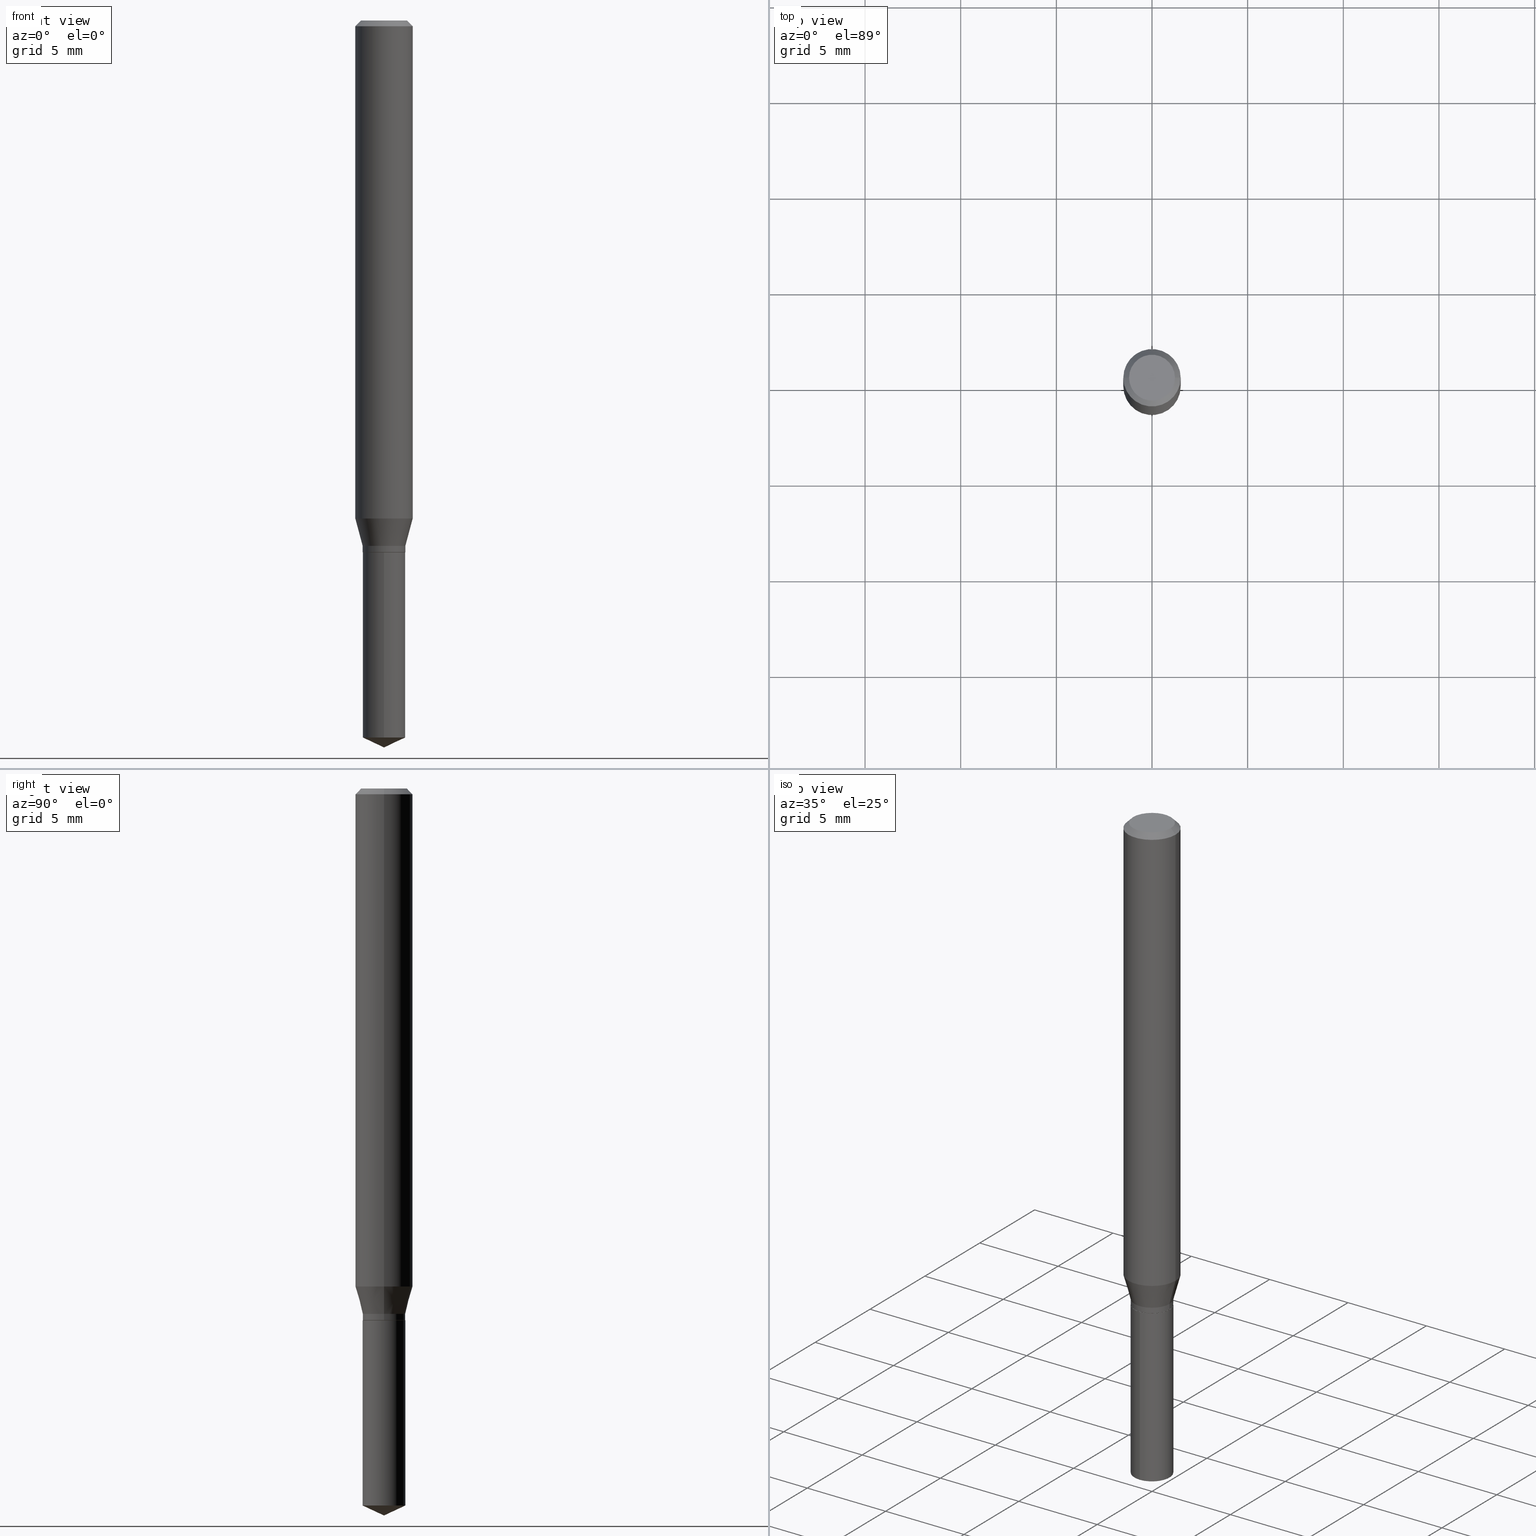
[diagram: canonical four-view strip — front | top / right | iso, engineering-drawing reading convention]
A machine part, canonical four-view strip (front | top / right | iso — engineering-drawing reading convention). The complete STEP part file that produces these views, byte-faithful:
ISO-10303-21;
HEADER;
FILE_DESCRIPTION (( 'STEP AP203' ),
    '1' );
FILE_NAME ('07972.STEP',
    '2024-04-24T07:39:22',
    ( '' ),
    ( '' ),
    'SwSTEP 2.0',
    'SolidWorks 2023',
    '' );
FILE_SCHEMA (( 'CONFIG_CONTROL_DESIGN' ));
ENDSEC;

DATA;
#1 = EDGE_LOOP ( 'NONE', ( #242, #339 ) ) ;
#2 = EDGE_CURVE ( 'NONE', #434, #27, #50, .T. ) ;
#3 = DIRECTION ( 'NONE',  ( -1.000000000000000000, 6.982962677686266711E-15, 0.000000000000000000 ) ) ;
#4 = VERTEX_POINT ( 'NONE', #436 ) ;
#5 = ADVANCED_FACE ( 'NONE', ( #198 ), #191, .T. ) ;
#6 = VECTOR ( 'NONE', #318, 39.37007874015748143 ) ;
#7 = DIRECTION ( 'NONE',  ( 1.000000000000000000, -6.982962677686265133E-15, 0.000000000000000000 ) ) ;
#8 = VERTEX_POINT ( 'NONE', #363 ) ;
#9 = DIRECTION ( 'NONE',  ( -6.982962677686265922E-15, -1.000000000000000000, 3.111444184127862170E-15 ) ) ;
#10 = CARTESIAN_POINT ( 'NONE',  ( -0.04724000000000000421, 3.504923541997677355E-16, -3.380025165670481712E-19 ) ) ;
#11 = ADVANCED_FACE ( 'NONE', ( #206 ), #23, .T. ) ;
#12 = ORIENTED_EDGE ( 'NONE', *, *, #125, .T. ) ;
#13 = MECHANICAL_CONTEXT ( 'NONE', #127, 'mechanical' ) ;
#14 = CONICAL_SURFACE ( 'NONE', #103, 0.05904999999999999832, 0.7853981633974449483 ) ;
#15 = EDGE_CURVE ( 'NONE', #110, #334, #453, .T. ) ;
#16 = CARTESIAN_POINT ( 'NONE',  ( 2.506017220557920356E-29, -3.577928427574937870E-15, -1.024759430265331339 ) ) ;
#17 = ORIENTED_EDGE ( 'NONE', *, *, #161, .T. ) ;
#18 = CARTESIAN_POINT ( 'NONE',  ( -0.05905000000000006771, 4.195754854663396409E-16, -2.904631170795525045E-30 ) ) ;
#19 = PERSON ( 'UNSPECIFIED', 'UNSPECIFIED', 'UNSPECIFIED', ('UNSPECIFIED'), ('UNSPECIFIED'), ('UNSPECIFIED') ) ;
#20 = DIRECTION ( 'NONE',  ( -2.445458899330790108E-29, 3.491495526022433205E-15, 1.000000000000000000 ) ) ;
#21 = AXIS2_PLACEMENT_3D ( 'NONE', #248, #402, #296 ) ;
#22 = DIRECTION ( 'NONE',  ( 1.000000000000000000, -6.982962677686265922E-15, 4.876176775795936353E-29 ) ) ;
#23 = CYLINDRICAL_SURFACE ( 'NONE', #168, 0.04390000000000000152 ) ;
#24 = DIRECTION ( 'NONE',  ( 0.7071067811865232589, -2.468850131082003836E-15, 0.7071067811865715536 ) ) ;
#25 = CARTESIAN_POINT ( 'NONE',  ( 3.658672935554494692E-29, -5.223595400746700193E-15, -1.496099999999999985 ) ) ;
#26 = CARTESIAN_POINT ( 'NONE',  ( 2.888098660104665518E-31, -4.123439461173782112E-17, -0.01181000000000007738 ) ) ;
#27 = VERTEX_POINT ( 'NONE', #471 ) ;
#28 = CARTESIAN_POINT ( 'NONE',  ( 0.04724000000000000421, -3.852183633974369838E-16, -3.380025165621689721E-19 ) ) ;
#29 = DIRECTION ( 'NONE',  ( -2.445468806185136597E-29, 3.491481338843145583E-15, 1.000000000000000000 ) ) ;
#30 = CARTESIAN_POINT ( 'NONE',  ( 2.644285420127988674E-29, -3.775338771691093501E-15, -1.081299999999999928 ) ) ;
#31 = PERSON_AND_ORGANIZATION ( #19, #365 ) ;
#32 = ADVANCED_FACE ( 'NONE', ( #288 ), #230, .T. ) ;
#33 = ORIENTED_EDGE ( 'NONE', *, *, #455, .F. ) ;
#34 = AXIS2_PLACEMENT_3D ( 'NONE', #136, #254, #188 ) ;
#35 = CARTESIAN_POINT ( 'NONE',  ( -9.261924752013118283E-28, 1.322368428517963298E-13, 37.87397874015748300 ) ) ;
#36 = COORDINATED_UNIVERSAL_TIME_OFFSET ( 5, 0, .BEHIND. ) ;
#37 = DIRECTION ( 'NONE',  ( 1.000000000000000000, -6.982962677686265922E-15, 4.876176775795936353E-29 ) ) ;
#38 = ADVANCED_FACE ( 'NONE', ( #126 ), #359, .T. ) ;
#39 = ORIENTED_EDGE ( 'NONE', *, *, #108, .T. ) ;
#40 = CARTESIAN_POINT ( 'NONE',  ( 3.119282609987106658E-16, 0.04389999999999617819, -1.094500000000000028 ) ) ;
#41 = DIRECTION ( 'NONE',  ( 1.000000000000000000, -6.982962677686266711E-15, 4.876176775795936353E-29 ) ) ;
#42 = ORIENTED_EDGE ( 'NONE', *, *, #470, .F. ) ;
#43 = PERSON_AND_ORGANIZATION_ROLE ( 'design_owner' ) ;
#44 = VECTOR ( 'NONE', #369, 39.37007874015748143 ) ;
#45 =( GEOMETRIC_REPRESENTATION_CONTEXT ( 3 ) GLOBAL_UNCERTAINTY_ASSIGNED_CONTEXT ( ( #450 ) ) GLOBAL_UNIT_ASSIGNED_CONTEXT ( ( #196, #353, #459 ) ) REPRESENTATION_CONTEXT ( 'NONE', 'WORKASPACE' ) );
#46 = EDGE_LOOP ( 'NONE', ( #86, #286, #94, #361 ) ) ;
#47 = CARTESIAN_POINT ( 'NONE',  ( 3.658651059288795076E-29, -5.223626456482161457E-15, -1.496099999999999985 ) ) ;
#48 = EDGE_CURVE ( 'NONE', #110, #52, #165, .T. ) ;
#49 = PRODUCT ( '07972', '07972', '', ( #13 ) ) ;
#50 = CIRCLE ( 'NONE', #427, 0.04340000000000000108 ) ;
#51 = AXIS2_PLACEMENT_3D ( 'NONE', #118, #400, #245 ) ;
#52 = VERTEX_POINT ( 'NONE', #252 ) ;
#53 = EDGE_CURVE ( 'NONE', #343, #8, #249, .T. ) ;
#54 = DIRECTION ( 'NONE',  ( -2.445468806185136597E-29, 3.491481338843145583E-15, 1.000000000000000000 ) ) ;
#55 = APPROVAL ( #74, 'UNSPECIFIED' ) ;
#56 = CARTESIAN_POINT ( 'NONE',  ( 0.04390000000000000152, -4.081890833241520572E-15, -1.081299999999999928 ) ) ;
#57 = FACE_OUTER_BOUND ( 'NONE', #151, .T. ) ;
#58 = CARTESIAN_POINT ( 'NONE',  ( 0.04390000000000000152, -4.081890833241520572E-15, -1.081299999999999928 ) ) ;
#59 = AXIS2_PLACEMENT_3D ( 'NONE', #130, #405, #133 ) ;
#60 = ORIENTED_EDGE ( 'NONE', *, *, #415, .F. ) ;
#61 = VECTOR ( 'NONE', #261, 39.37007874015748143 ) ;
#62 = ADVANCED_FACE ( 'NONE', ( #124 ), #319, .T. ) ;
#63 = DIRECTION ( 'NONE',  ( 1.000000000000000000, -6.982962677686266711E-15, 4.876185090822587894E-29 ) ) ;
#64 = ADVANCED_FACE ( 'NONE', ( #57 ), #203, .T. ) ;
#65 = AXIS2_PLACEMENT_3D ( 'NONE', #479, #274, #41 ) ;
#66 = ADVANCED_FACE ( 'NONE', ( #207 ), #175, .T. ) ;
#67 = EDGE_LOOP ( 'NONE', ( #352, #408, #12, #283 ) ) ;
#68 = CARTESIAN_POINT ( 'NONE',  ( 0.04390000000000000152, -3.065520615504270707E-16, 2.140641604574416020E-30 ) ) ;
#69 = CALENDAR_DATE ( 2024, 24, 4 ) ;
#70 = COORDINATED_UNIVERSAL_TIME_OFFSET ( 5, 0, .BEHIND. ) ;
#71 = EDGE_LOOP ( 'NONE', ( #221, #79, #185, #160 ) ) ;
#72 = CARTESIAN_POINT ( 'NONE',  ( -0.04390000000000000152, -3.485581417194063442E-15, -1.093999999999999861 ) ) ;
#73 = DIRECTION ( 'NONE',  ( 1.000000000000000000, -6.982962677686266711E-15, 0.000000000000000000 ) ) ;
#74 = APPROVAL_STATUS ( 'not_yet_approved' ) ;
#75 = ORIENTED_EDGE ( 'NONE', *, *, #299, .F. ) ;
#76 = CIRCLE ( 'NONE', #91, 0.05905000000000013016 ) ;
#77 = VECTOR ( 'NONE', #310, 39.37007874015748143 ) ;
#78 = FACE_OUTER_BOUND ( 'NONE', #255, .T. ) ;
#79 = ORIENTED_EDGE ( 'NONE', *, *, #48, .T. ) ;
#80 = APPLICATION_PROTOCOL_DEFINITION ( 'international standard', 'config_control_design', 1994, #127 ) ;
#81 = DIRECTION ( 'NONE',  ( -6.982962677686265922E-15, -1.000000000000000000, 3.111444184127862170E-15 ) ) ;
#82 = ORIENTED_EDGE ( 'NONE', *, *, #282, .F. ) ;
#83 = PLANE ( 'NONE',  #258 ) ;
#84 = ORIENTED_EDGE ( 'NONE', *, *, #208, .F. ) ;
#85 = CARTESIAN_POINT ( 'NONE',  ( 0.000000000000000000, 0.000000000000000000, 0.000000000000000000 ) ) ;
#86 = ORIENTED_EDGE ( 'NONE', *, *, #92, .F. ) ;
#87 = FACE_OUTER_BOUND ( 'NONE', #71, .T. ) ;
#88 = CARTESIAN_POINT ( 'NONE',  ( 2.676565608369631794E-29, -3.821426325363822773E-15, -1.094499999999999806 ) ) ;
#89 = ADVANCED_FACE ( 'NONE', ( #489 ), #162, .T. ) ;
#90 = CARTESIAN_POINT ( 'NONE',  ( 2.676565608369631794E-29, -3.821426325363822773E-15, -1.094499999999999806 ) ) ;
#91 = AXIS2_PLACEMENT_3D ( 'NONE', #138, #447, #7 ) ;
#92 = EDGE_CURVE ( 'NONE', #234, #110, #148, .T. ) ;
#93 = VERTEX_POINT ( 'NONE', #303 ) ;
#94 = ORIENTED_EDGE ( 'NONE', *, *, #202, .T. ) ;
#95 = LINE ( 'NONE', #475, #486 ) ;
#96 = CARTESIAN_POINT ( 'NONE',  ( -9.261924752013118283E-28, 1.322368428517963298E-13, 37.87397874015748300 ) ) ;
#97 = LINE ( 'NONE', #368, #454 ) ;
#98 = EDGE_CURVE ( 'NONE', #334, #110, #76, .T. ) ;
#99 = VECTOR ( 'NONE', #289, 39.37007874015748143 ) ;
#100 = ORIENTED_EDGE ( 'NONE', *, *, #169, .T. ) ;
#101 = ORIENTED_EDGE ( 'NONE', *, *, #441, .T. ) ;
#102 = CC_DESIGN_PERSON_AND_ORGANIZATION_ASSIGNMENT ( #180, #141, ( #406 ) ) ;
#103 = AXIS2_PLACEMENT_3D ( 'NONE', #26, #190, #3 ) ;
#104 = AXIS2_PLACEMENT_3D ( 'NONE', #85, #112, #281 ) ;
#105 = ORIENTED_EDGE ( 'NONE', *, *, #2, .T. ) ;
#106 = PERSON_AND_ORGANIZATION ( #19, #365 ) ;
#107 = PERSON_AND_ORGANIZATION ( #19, #365 ) ;
#108 = EDGE_CURVE ( 'NONE', #93, #52, #371, .T. ) ;
#109 = CARTESIAN_POINT ( 'NONE',  ( 2.676565608369631794E-29, -3.821426325363822773E-15, -1.094499999999999806 ) ) ;
#110 = VERTEX_POINT ( 'NONE', #217 ) ;
#111 = LOCAL_TIME ( 3, 39, 22.00000000000000000, #218 ) ;
#112 = DIRECTION ( 'NONE',  ( 0.000000000000000000, 0.000000000000000000, 1.000000000000000000 ) ) ;
#113 = DIRECTION ( 'NONE',  ( -1.000000000000000000, 6.982962677686265922E-15, -4.876176775795935793E-29 ) ) ;
#114 = FACE_OUTER_BOUND ( 'NONE', #426, .T. ) ;
#115 = ADVANCED_FACE ( 'NONE', ( #78 ), #348, .T. ) ;
#116 = ORIENTED_EDGE ( 'NONE', *, *, #202, .F. ) ;
#117 = DIRECTION ( 'NONE',  ( -0.7071067811865451302, 2.468850131082231817E-15, -0.7071067811865499042 ) ) ;
#118 = CARTESIAN_POINT ( 'NONE',  ( 2.644285420127988674E-29, -3.775338771691093501E-15, -1.081299999999999928 ) ) ;
#119 = DESIGN_CONTEXT ( 'detailed design', #251, 'design' ) ;
#120 = APPROVAL ( #457, 'UNSPECIFIED' ) ;
#121 = CIRCLE ( 'NONE', #435, 0.04340000000000000108 ) ;
#122 = ORIENTED_EDGE ( 'NONE', *, *, #182, .F. ) ;
#123 = APPLICATION_PROTOCOL_DEFINITION ( 'international standard', 'config_control_design', 1994, #251 ) ;
#124 = FACE_OUTER_BOUND ( 'NONE', #201, .T. ) ;
#125 = EDGE_CURVE ( 'NONE', #334, #93, #451, .T. ) ;
#126 = FACE_OUTER_BOUND ( 'NONE', #192, .T. ) ;
#127 = APPLICATION_CONTEXT ( 'configuration controlled 3d designs of mechanical parts and assemblies' ) ;
#128 = CIRCLE ( 'NONE', #21, 0.04390000000000000152 ) ;
#129 = DIRECTION ( 'NONE',  ( -2.445468806185136597E-29, 3.491481338843145583E-15, 1.000000000000000000 ) ) ;
#130 = CARTESIAN_POINT ( 'NONE',  ( 2.644285420127988674E-29, -3.775338771691093501E-15, -1.081299999999999928 ) ) ;
#131 = ORIENTED_EDGE ( 'NONE', *, *, #197, .T. ) ;
#132 = CARTESIAN_POINT ( 'NONE',  ( 2.676565608369631794E-29, -3.821426325363822773E-15, -1.094499999999999806 ) ) ;
#133 = DIRECTION ( 'NONE',  ( 1.000000000000000000, -6.982962677686261977E-15, 0.000000000000000000 ) ) ;
#134 = DIRECTION ( 'NONE',  ( 1.000000000000000000, -6.982962677686261977E-15, 0.000000000000000000 ) ) ;
#135 = CONICAL_SURFACE ( 'NONE', #51, 0.04390000000000000152, 0.2617993877991502960 ) ;
#136 = CARTESIAN_POINT ( 'NONE',  ( 2.888098660104665518E-31, -4.123439461173782112E-17, -0.01181000000000007738 ) ) ;
#137 = CARTESIAN_POINT ( 'NONE',  ( -3.065520615504003481E-16, -0.04390000000000382485, -1.094499999999999806 ) ) ;
#138 = CARTESIAN_POINT ( 'NONE',  ( 2.506017220557920356E-29, -3.577928427574937870E-15, -1.024759430265331339 ) ) ;
#139 = CARTESIAN_POINT ( 'NONE',  ( 0.05904999999999999832, -4.463468013801467941E-16, -0.01181000000000007738 ) ) ;
#140 = CC_DESIGN_DATE_AND_TIME_ASSIGNMENT ( #487, #263, ( #228 ) ) ;
#141 = PERSON_AND_ORGANIZATION_ROLE ( 'classification_officer' ) ;
#142 = EDGE_LOOP ( 'NONE', ( #17, #100, #362, #350 ) ) ;
#143 = DIRECTION ( 'NONE',  ( -2.445468806185136877E-29, 3.491481338843145188E-15, 1.000000000000000000 ) ) ;
#144 = CIRCLE ( 'NONE', #204, 0.04390000000000000152 ) ;
#145 = ADVANCED_BREP_SHAPE_REPRESENTATION ( '07972', ( #332, #335, #104 ), #45 ) ;
#146 = COORDINATED_UNIVERSAL_TIME_OFFSET ( 5, 0, .BEHIND. ) ;
#147 = CARTESIAN_POINT ( 'NONE',  ( 2.676565608369631794E-29, -3.821426325363822773E-15, -1.094499999999999806 ) ) ;
#148 = LINE ( 'NONE', #329, #44 ) ;
#149 = APPROVAL_DATE_TIME ( #378, #244 ) ;
#150 = LINE ( 'NONE', #456, #184 ) ;
#151 = EDGE_LOOP ( 'NONE', ( #131, #432, #312, #473 ) ) ;
#152 = CARTESIAN_POINT ( 'NONE',  ( -0.05904999999999999832, 3.711095515056362054E-16, -0.01181000000000007738 ) ) ;
#153 = AXIS2_PLACEMENT_3D ( 'NONE', #90, #246, #164 ) ;
#154 = PRODUCT_DEFINITION_FORMATION_WITH_SPECIFIED_SOURCE ( 'ANY', '', #49, .NOT_KNOWN. ) ;
#155 = ADVANCED_FACE ( 'NONE', ( #114 ), #14, .T. ) ;
#156 = DIRECTION ( 'NONE',  ( 1.000000000000000000, -6.982962677686272233E-15, 0.000000000000000000 ) ) ;
#157 = LINE ( 'NONE', #40, #77 ) ;
#158 = FACE_OUTER_BOUND ( 'NONE', #1, .T. ) ;
#159 = ORIENTED_EDGE ( 'NONE', *, *, #214, .F. ) ;
#160 = ORIENTED_EDGE ( 'NONE', *, *, #125, .F. ) ;
#161 = EDGE_CURVE ( 'NONE', #27, #434, #121, .T. ) ;
#162 = CONICAL_SURFACE ( 'NONE', #34, 0.05904999999999999832, 0.7853981633974449483 ) ;
#163 = VECTOR ( 'NONE', #117, 39.37007874015748143 ) ;
#164 = DIRECTION ( 'NONE',  ( 1.000000000000000000, -6.982962677686272233E-15, 0.000000000000000000 ) ) ;
#165 = LINE ( 'NONE', #18, #6 ) ;
#166 = DIRECTION ( 'NONE',  ( -6.982962677686265922E-15, -1.000000000000000000, 6.222888368255724339E-15 ) ) ;
#167 = CARTESIAN_POINT ( 'NONE',  ( 2.676565608369631794E-29, -3.821426325363822773E-15, -1.094499999999999806 ) ) ;
#168 = AXIS2_PLACEMENT_3D ( 'NONE', #173, #321, #22 ) ;
#169 = EDGE_CURVE ( 'NONE', #434, #343, #150, .T. ) ;
#170 = VECTOR ( 'NONE', #464, 39.37007874015748143 ) ;
#171 = EDGE_LOOP ( 'NONE', ( #346, #231 ) ) ;
#172 = LINE ( 'NONE', #25, #364 ) ;
#173 = CARTESIAN_POINT ( 'NONE',  ( 0.000000000000000000, 0.000000000000000000, 0.000000000000000000 ) ) ;
#174 = LINE ( 'NONE', #68, #336 ) ;
#175 = CYLINDRICAL_SURFACE ( 'NONE', #65, 0.05905000000000006771 ) ;
#176 = EDGE_CURVE ( 'NONE', #452, #391, #232, .T. ) ;
#177 = AXIS2_PLACEMENT_3D ( 'NONE', #88, #425, #9 ) ;
#178 = LOCAL_TIME ( 3, 39, 22.00000000000000000, #36 ) ;
#179 = EDGE_CURVE ( 'NONE', #4, #355, #465, .T. ) ;
#180 = PERSON_AND_ORGANIZATION ( #19, #365 ) ;
#181 = DIRECTION ( 'NONE',  ( -2.445468806185136597E-29, 3.491481338843145583E-15, 1.000000000000000000 ) ) ;
#182 = EDGE_CURVE ( 'NONE', #407, #458, #172, .T. ) ;
#183 = DATE_AND_TIME ( #215, #373 ) ;
#184 = VECTOR ( 'NONE', #270, 39.37007874015748854 ) ;
#185 = ORIENTED_EDGE ( 'NONE', *, *, #108, .F. ) ;
#186 = DIRECTION ( 'NONE',  ( -6.982962677686266711E-15, -1.000000000000000000, 3.520397390770417188E-15 ) ) ;
#187 = ORIENTED_EDGE ( 'NONE', *, *, #179, .T. ) ;
#188 = DIRECTION ( 'NONE',  ( -1.000000000000000000, 6.982962677686266711E-15, 0.000000000000000000 ) ) ;
#189 =( LENGTH_UNIT ( ) NAMED_UNIT ( * ) SI_UNIT ( $, .METRE. ) );
#190 = DIRECTION ( 'NONE',  ( 2.445468806185136597E-29, -3.491481338843145583E-15, -1.000000000000000000 ) ) ;
#191 = CONICAL_SURFACE ( 'NONE', #472, 0.04340000000000000108, 0.7853981633974141952 ) ;
#192 = EDGE_LOOP ( 'NONE', ( #399, #105, #331, #315 ) ) ;
#193 = DIRECTION ( 'NONE',  ( 1.000000000000000000, -6.982962677686266711E-15, 4.876176775795936353E-29 ) ) ;
#194 = AXIS2_PLACEMENT_3D ( 'NONE', #295, #181, #488 ) ;
#195 = ORIENTED_EDGE ( 'NONE', *, *, #314, .T. ) ;
#196 =( CONVERSION_BASED_UNIT ( 'INCH', #225 ) LENGTH_UNIT ( ) NAMED_UNIT ( #212 ) );
#197 = EDGE_CURVE ( 'NONE', #8, #343, #397, .T. ) ;
#198 = FACE_OUTER_BOUND ( 'NONE', #142, .T. ) ;
#199 = CC_DESIGN_APPROVAL ( #244, ( #406 ) ) ;
#200 = ORIENTED_EDGE ( 'NONE', *, *, #98, .F. ) ;
#201 = EDGE_LOOP ( 'NONE', ( #33, #424, #236, #370 ) ) ;
#202 = EDGE_CURVE ( 'NONE', #309, #334, #330, .T. ) ;
#203 = CYLINDRICAL_SURFACE ( 'NONE', #419, 0.04390000000000000152 ) ;
#204 = AXIS2_PLACEMENT_3D ( 'NONE', #247, #293, #166 ) ;
#205 = CIRCLE ( 'NONE', #233, 0.04390000000000000152 ) ;
#206 = FACE_OUTER_BOUND ( 'NONE', #463, .T. ) ;
#207 = FACE_OUTER_BOUND ( 'NONE', #67, .T. ) ;
#208 = EDGE_CURVE ( 'NONE', #234, #309, #128, .T. ) ;
#209 = FACE_OUTER_BOUND ( 'NONE', #469, .T. ) ;
#210 = DIRECTION ( 'NONE',  ( 6.439704144417041397E-15, 0.9063077870366539335, 0.4226182617406910591 ) ) ;
#211 = FACE_OUTER_BOUND ( 'NONE', #264, .T. ) ;
#212 = DIMENSIONAL_EXPONENTS ( 1.000000000000000000, 0.000000000000000000, 0.000000000000000000, 0.000000000000000000, 0.000000000000000000, 0.000000000000000000, 0.000000000000000000 ) ;
#213 = CALENDAR_DATE ( 2024, 24, 4 ) ;
#214 = EDGE_CURVE ( 'NONE', #391, #452, #297, .T. ) ;
#215 = CALENDAR_DATE ( 2024, 24, 4 ) ;
#216 = PRODUCT_RELATED_PRODUCT_CATEGORY ( 'detail', '', ( #49 ) ) ;
#217 = CARTESIAN_POINT ( 'NONE',  ( -0.05905000000000013016, -3.158352942108598377E-15, -1.024759430265331339 ) ) ;
#218 = COORDINATED_UNIVERSAL_TIME_OFFSET ( 5, 0, .BEHIND. ) ;
#219 = AXIS2_PLACEMENT_3D ( 'NONE', #238, #284, #81 ) ;
#220 = CC_DESIGN_SECURITY_CLASSIFICATION ( #406, ( #154 ) ) ;
#221 = ORIENTED_EDGE ( 'NONE', *, *, #98, .T. ) ;
#222 = DIRECTION ( 'NONE',  ( -2.445468806185136597E-29, 3.491481338843145583E-15, 1.000000000000000000 ) ) ;
#223 = COORDINATED_UNIVERSAL_TIME_OFFSET ( 5, 0, .BEHIND. ) ;
#224 = ORIENTED_EDGE ( 'NONE', *, *, #92, .T. ) ;
#225 = LENGTH_MEASURE_WITH_UNIT ( LENGTH_MEASURE( 0.02539999999999999897 ), #189 );
#226 = DIRECTION ( 'NONE',  ( -2.445468806185136597E-29, 3.491481338843145583E-15, 1.000000000000000000 ) ) ;
#227 = PERSON_AND_ORGANIZATION ( #19, #365 ) ;
#228 = PRODUCT_DEFINITION ( 'UNKNOWN', '', #154, #119 ) ;
#229 = ORIENTED_EDGE ( 'NONE', *, *, #409, .T. ) ;
#230 = CONICAL_SURFACE ( 'NONE', #389, 84.42940631927521622, 1.134464013796320003 ) ;
#231 = ORIENTED_EDGE ( 'NONE', *, *, #2, .F. ) ;
#232 = CIRCLE ( 'NONE', #480, 0.04724000000000000421 ) ;
#233 = AXIS2_PLACEMENT_3D ( 'NONE', #466, #237, #272 ) ;
#234 = VERTEX_POINT ( 'NONE', #308 ) ;
#235 = CARTESIAN_POINT ( 'NONE',  ( 0.000000000000000000, 0.000000000000000000, 0.000000000000000000 ) ) ;
#236 = ORIENTED_EDGE ( 'NONE', *, *, #285, .T. ) ;
#237 = DIRECTION ( 'NONE',  ( -2.445458899330790108E-29, 3.491495526022433205E-15, 1.000000000000000000 ) ) ;
#238 = CARTESIAN_POINT ( 'NONE',  ( 2.676565608369631794E-29, -3.821426325363822773E-15, -1.094499999999999806 ) ) ;
#239 = ADVANCED_FACE ( 'NONE', ( #158 ), #354, .F. ) ;
#240 = ORIENTED_EDGE ( 'NONE', *, *, #455, .T. ) ;
#241 = CIRCLE ( 'NONE', #194, 0.05904999999999999832 ) ;
#242 = ORIENTED_EDGE ( 'NONE', *, *, #176, .T. ) ;
#243 = DIRECTION ( 'NONE',  ( 1.000000000000000000, -6.982962677686261977E-15, 0.000000000000000000 ) ) ;
#244 = APPROVAL ( #446, 'UNSPECIFIED' ) ;
#245 = DIRECTION ( 'NONE',  ( 1.000000000000000000, -6.982962677686261977E-15, 0.000000000000000000 ) ) ;
#246 = DIRECTION ( 'NONE',  ( -2.445468806185136597E-29, 3.491481338843145583E-15, 1.000000000000000000 ) ) ;
#247 = CARTESIAN_POINT ( 'NONE',  ( 3.608601142613829336E-29, -5.152136851227932121E-15, -1.475629093806995806 ) ) ;
#248 = CARTESIAN_POINT ( 'NONE',  ( 2.644285420127988674E-29, -3.775338771691093501E-15, -1.081299999999999928 ) ) ;
#249 = CIRCLE ( 'NONE', #306, 0.04390000000000000152 ) ;
#250 = AXIS2_PLACEMENT_3D ( 'NONE', #147, #375, #301 ) ;
#251 = APPLICATION_CONTEXT ( 'configuration controlled 3d designs of mechanical parts and assemblies' ) ;
#252 = CARTESIAN_POINT ( 'NONE',  ( -0.05904999999999999832, -1.390005925626997320E-15, -0.01181000000000007738 ) ) ;
#253 = CC_DESIGN_PERSON_AND_ORGANIZATION_ASSIGNMENT ( #106, #300, ( #228 ) ) ;
#254 = DIRECTION ( 'NONE',  ( 2.445468806185136597E-29, -3.491481338843145583E-15, -1.000000000000000000 ) ) ;
#255 = EDGE_LOOP ( 'NONE', ( #122, #305, #75 ) ) ;
#256 = DIRECTION ( 'NONE',  ( -2.445468806185136597E-29, 3.491481338843145583E-15, 1.000000000000000000 ) ) ;
#257 = CIRCLE ( 'NONE', #219, 0.04390000000000000152 ) ;
#258 = AXIS2_PLACEMENT_3D ( 'NONE', #313, #431, #462 ) ;
#259 = APPROVAL_DATE_TIME ( #484, #120 ) ;
#260 = ADVANCED_FACE ( 'NONE', ( #393 ), #273, .T. ) ;
#261 = DIRECTION ( 'NONE',  ( 0.7071067811865451302, -7.319954787623248157E-15, -0.7071067811865499042 ) ) ;
#262 = CALENDAR_DATE ( 2024, 24, 4 ) ;
#263 = DATE_TIME_ROLE ( 'creation_date' ) ;
#264 = EDGE_LOOP ( 'NONE', ( #195, #224, #200, #116 ) ) ;
#265 = CARTESIAN_POINT ( 'NONE',  ( -3.065520615503908817E-16, -0.04390000000000513630, -1.475629093806995584 ) ) ;
#266 = EDGE_CURVE ( 'NONE', #355, #4, #257, .T. ) ;
#267 = DIRECTION ( 'NONE',  ( -2.445468806185136597E-29, 3.491481338843145583E-15, 1.000000000000000000 ) ) ;
#268 = AXIS2_PLACEMENT_3D ( 'NONE', #416, #222, #73 ) ;
#269 = ORIENTED_EDGE ( 'NONE', *, *, #441, .F. ) ;
#270 = DIRECTION ( 'NONE',  ( -0.7071067811865232589, 7.493145998870265808E-15, 0.7071067811865715536 ) ) ;
#271 = ORIENTED_EDGE ( 'NONE', *, *, #470, .T. ) ;
#272 = DIRECTION ( 'NONE',  ( -6.982962677686265922E-15, -1.000000000000000000, 6.222888368255724339E-15 ) ) ;
#273 = CYLINDRICAL_SURFACE ( 'NONE', #177, 0.04390000000000000152 ) ;
#274 = DIRECTION ( 'NONE',  ( -2.445468806185136597E-29, 3.491481338843145583E-15, 1.000000000000000000 ) ) ;
#275 = ORIENTED_EDGE ( 'NONE', *, *, #326, .T. ) ;
#276 = CYLINDRICAL_SURFACE ( 'NONE', #429, 0.05905000000000006771 ) ;
#277 = CIRCLE ( 'NONE', #59, 0.04390000000000000152 ) ;
#278 = ADVANCED_FACE ( 'NONE', ( #387 ), #135, .T. ) ;
#279 = APPROVAL_PERSON_ORGANIZATION ( #227, #55, #413 ) ;
#280 = EDGE_LOOP ( 'NONE', ( #394, #482, #271, #275 ) ) ;
#281 = DIRECTION ( 'NONE',  ( 1.000000000000000000, 0.000000000000000000, 0.000000000000000000 ) ) ;
#282 = EDGE_CURVE ( 'NONE', #343, #234, #97, .T. ) ;
#283 = ORIENTED_EDGE ( 'NONE', *, *, #326, .F. ) ;
#284 = DIRECTION ( 'NONE',  ( -2.445458899330790108E-29, 3.491495526022433205E-15, 1.000000000000000000 ) ) ;
#285 = EDGE_CURVE ( 'NONE', #367, #4, #323, .T. ) ;
#286 = ORIENTED_EDGE ( 'NONE', *, *, #208, .T. ) ;
#287 = DIRECTION ( 'NONE',  ( -6.982962677686265922E-15, -1.000000000000000000, 3.111444184127862170E-15 ) ) ;
#288 = FACE_OUTER_BOUND ( 'NONE', #290, .T. ) ;
#289 = DIRECTION ( 'NONE',  ( 0.2588190451025215721, 1.565188264969619995E-15, 0.9659258262890679791 ) ) ;
#290 = EDGE_LOOP ( 'NONE', ( #60, #374, #269 ) ) ;
#291 = AXIS2_PLACEMENT_3D ( 'NONE', #414, #256, #356 ) ;
#292 = DIRECTION ( 'NONE',  ( -2.445468806185136877E-29, 3.491481338843145188E-15, 1.000000000000000000 ) ) ;
#293 = DIRECTION ( 'NONE',  ( -2.445458899330790108E-29, 3.491495526022433205E-15, 1.000000000000000000 ) ) ;
#294 = APPROVAL_DATE_TIME ( #183, #55 ) ;
#295 = CARTESIAN_POINT ( 'NONE',  ( 2.888098660104665518E-31, -4.123439461173782112E-17, -0.01181000000000007738 ) ) ;
#296 = DIRECTION ( 'NONE',  ( 1.000000000000000000, -6.982962677686261977E-15, 0.000000000000000000 ) ) ;
#297 = CIRCLE ( 'NONE', #291, 0.04724000000000000421 ) ;
#298 = PERSON_AND_ORGANIZATION ( #19, #365 ) ;
#299 = EDGE_CURVE ( 'NONE', #458, #367, #144, .T. ) ;
#300 = PERSON_AND_ORGANIZATION_ROLE ( 'creator' ) ;
#301 = DIRECTION ( 'NONE',  ( 6.982962677686265922E-15, 1.000000000000000000, -3.491495526022433599E-15 ) ) ;
#302 = EDGE_CURVE ( 'NONE', #27, #8, #95, .T. ) ;
#303 = CARTESIAN_POINT ( 'NONE',  ( 0.05904999999999999832, -4.535783407291118600E-16, -0.01181000000000007738 ) ) ;
#304 = PERSON_AND_ORGANIZATION_ROLE ( 'creator' ) ;
#305 = ORIENTED_EDGE ( 'NONE', *, *, #415, .T. ) ;
#306 = AXIS2_PLACEMENT_3D ( 'NONE', #357, #129, #243 ) ;
#307 = ORIENTED_EDGE ( 'NONE', *, *, #179, .F. ) ;
#308 = CARTESIAN_POINT ( 'NONE',  ( -0.04390000000000000152, -3.485581417194063442E-15, -1.081299999999999928 ) ) ;
#309 = VERTEX_POINT ( 'NONE', #56 ) ;
#310 = DIRECTION ( 'NONE',  ( -2.445458899330790108E-29, 3.491495526022433599E-15, 1.000000000000000000 ) ) ;
#311 = PRODUCT_DEFINITION_SHAPE ( 'NONE', 'NONE',  #228 ) ;
#312 = ORIENTED_EDGE ( 'NONE', *, *, #314, .F. ) ;
#313 = CARTESIAN_POINT ( 'NONE',  ( 2.676565608369631794E-29, -3.821426325363822773E-15, -1.094499999999999806 ) ) ;
#314 = EDGE_CURVE ( 'NONE', #309, #234, #277, .T. ) ;
#315 = ORIENTED_EDGE ( 'NONE', *, *, #53, .F. ) ;
#316 = AXIS2_PLACEMENT_3D ( 'NONE', #372, #29, #134 ) ;
#317 = LOCAL_TIME ( 3, 39, 22.00000000000000000, #146 ) ;
#318 = DIRECTION ( 'NONE',  ( -2.445468806185136877E-29, 3.491481338843145188E-15, 1.000000000000000000 ) ) ;
#319 = CYLINDRICAL_SURFACE ( 'NONE', #428, 0.04390000000000000152 ) ;
#320 = EDGE_CURVE ( 'NONE', #8, #309, #174, .T. ) ;
#321 = DIRECTION ( 'NONE',  ( -2.445468806185136597E-29, 3.491481338843145583E-15, 1.000000000000000000 ) ) ;
#322 = VECTOR ( 'NONE', #292, 39.37007874015748143 ) ;
#323 = LINE ( 'NONE', #137, #379 ) ;
#324 = CARTESIAN_POINT ( 'NONE',  ( 2.676565608369631794E-29, -3.821426325363822773E-15, -1.094499999999999806 ) ) ;
#325 = DIRECTION ( 'NONE',  ( -2.445468806185136597E-29, 3.491481338843145583E-15, 1.000000000000000000 ) ) ;
#326 = EDGE_CURVE ( 'NONE', #52, #93, #241, .T. ) ;
#327 = DIRECTION ( 'NONE',  ( -2.445468806185136877E-29, 3.491481338843145188E-15, 1.000000000000000000 ) ) ;
#328 = APPROVAL_PERSON_ORGANIZATION ( #107, #244, #380 ) ;
#329 = CARTESIAN_POINT ( 'NONE',  ( -0.04390000000000000152, -3.463410510692409953E-15, -1.081299999999999928 ) ) ;
#330 = LINE ( 'NONE', #58, #99 ) ;
#331 = ORIENTED_EDGE ( 'NONE', *, *, #302, .T. ) ;
#332 = MANIFOLD_SOLID_BREP ( 'Body-Move/Copy2[1]', #388 ) ;
#333 = CC_DESIGN_DATE_AND_TIME_ASSIGNMENT ( #448, #483, ( #406 ) ) ;
#334 = VERTEX_POINT ( 'NONE', #344 ) ;
#335 = MANIFOLD_SOLID_BREP ( 'Body-Move/Copy2[2]', #485 ) ;
#336 = VECTOR ( 'NONE', #143, 39.37007874015748143 ) ;
#337 = LOCAL_TIME ( 3, 39, 22.00000000000000000, #223 ) ;
#338 = SECURITY_CLASSIFICATION_LEVEL ( 'unclassified' ) ;
#339 = ORIENTED_EDGE ( 'NONE', *, *, #214, .T. ) ;
#340 = PLANE ( 'NONE',  #250 ) ;
#341 = CARTESIAN_POINT ( 'NONE',  ( 0.05905000000000006771, -4.123439461173745257E-16, 2.879382386107503723E-30 ) ) ;
#342 = PERSON_AND_ORGANIZATION_ROLE ( 'design_supplier' ) ;
#343 = VERTEX_POINT ( 'NONE', #72 ) ;
#344 = CARTESIAN_POINT ( 'NONE',  ( 0.05905000000000013016, -3.990272373692312791E-15, -1.024759430265331339 ) ) ;
#345 = DIRECTION ( 'NONE',  ( -2.445458899330790108E-29, 3.491495526022433205E-15, 1.000000000000000000 ) ) ;
#346 = ORIENTED_EDGE ( 'NONE', *, *, #161, .F. ) ;
#347 = DIRECTION ( 'NONE',  ( -2.445468806185136597E-29, 3.491481338843145583E-15, 1.000000000000000000 ) ) ;
#348 = CONICAL_SURFACE ( 'NONE', #410, 84.42940631927521622, 1.134464013796320003 ) ;
#349 = CC_DESIGN_APPROVAL ( #120, ( #228 ) ) ;
#350 = ORIENTED_EDGE ( 'NONE', *, *, #302, .F. ) ;
#351 = CARTESIAN_POINT ( 'NONE',  ( 3.119282609987198856E-16, 0.04389999999999482511, -1.475629093806996028 ) ) ;
#352 = ORIENTED_EDGE ( 'NONE', *, *, #48, .F. ) ;
#353 =( NAMED_UNIT ( * ) PLANE_ANGLE_UNIT ( ) SI_UNIT ( $, .RADIAN. ) );
#354 = PLANE ( 'NONE',  #404 ) ;
#355 = VERTEX_POINT ( 'NONE', #420 ) ;
#356 = DIRECTION ( 'NONE',  ( 1.000000000000000000, -6.982962677686266711E-15, 4.876185090822587894E-29 ) ) ;
#357 = CARTESIAN_POINT ( 'NONE',  ( 2.675342873966538993E-29, -3.819680584694400481E-15, -1.093999999999999861 ) ) ;
#358 = ADVANCED_FACE ( 'NONE', ( #209 ), #340, .F. ) ;
#359 = CONICAL_SURFACE ( 'NONE', #153, 0.04340000000000000108, 0.7853981633974141952 ) ;
#360 = APPROVAL_PERSON_ORGANIZATION ( #422, #120, #377 ) ;
#361 = ORIENTED_EDGE ( 'NONE', *, *, #15, .F. ) ;
#362 = ORIENTED_EDGE ( 'NONE', *, *, #197, .F. ) ;
#363 = CARTESIAN_POINT ( 'NONE',  ( 0.04390000000000000152, -4.126232646244827552E-15, -1.093999999999999861 ) ) ;
#364 = VECTOR ( 'NONE', #210, 39.37007874015748854 ) ;
#365 = ORGANIZATION ( 'UNSPECIFIED', 'UNSPECIFIED', '' ) ;
#366 = ADVANCED_FACE ( 'NONE', ( #211 ), #474, .T. ) ;
#367 = VERTEX_POINT ( 'NONE', #265 ) ;
#368 = CARTESIAN_POINT ( 'NONE',  ( -0.04390000000000000152, 3.119282609986839924E-16, -2.159412504621903712E-30 ) ) ;
#369 = DIRECTION ( 'NONE',  ( -0.2588190451025215721, 5.211531920934551831E-15, 0.9659258262890679791 ) ) ;
#370 = ORIENTED_EDGE ( 'NONE', *, *, #266, .F. ) ;
#371 = CIRCLE ( 'NONE', #268, 0.05904999999999999832 ) ;
#372 = CARTESIAN_POINT ( 'NONE',  ( 2.675342873966538993E-29, -3.819680584694400481E-15, -1.093999999999999861 ) ) ;
#373 = LOCAL_TIME ( 3, 39, 22.00000000000000000, #70 ) ;
#374 = ORIENTED_EDGE ( 'NONE', *, *, #182, .T. ) ;
#375 = DIRECTION ( 'NONE',  ( 2.445458899330789267E-29, -3.491495526022433599E-15, -1.000000000000000000 ) ) ;
#376 = CC_DESIGN_PERSON_AND_ORGANIZATION_ASSIGNMENT ( #298, #342, ( #154 ) ) ;
#377 = APPROVAL_ROLE ( '' ) ;
#378 = DATE_AND_TIME ( #262, #178 ) ;
#379 = VECTOR ( 'NONE', #438, 39.37007874015748143 ) ;
#380 = APPROVAL_ROLE ( '' ) ;
#381 = LINE ( 'NONE', #139, #61 ) ;
#382 = CARTESIAN_POINT ( 'NONE',  ( 0.000000000000000000, 0.000000000000000000, 0.000000000000000000 ) ) ;
#383 = CC_DESIGN_PERSON_AND_ORGANIZATION_ASSIGNMENT ( #386, #43, ( #49 ) ) ;
#384 = LINE ( 'NONE', #152, #163 ) ;
#385 = ORIENTED_EDGE ( 'NONE', *, *, #320, .T. ) ;
#386 = PERSON_AND_ORGANIZATION ( #19, #365 ) ;
#387 = FACE_OUTER_BOUND ( 'NONE', #46, .T. ) ;
#388 = CLOSED_SHELL ( 'NONE', ( #260, #32, #115, #62, #358 ) ) ;
#389 = AXIS2_PLACEMENT_3D ( 'NONE', #96, #437, #440 ) ;
#390 = CC_DESIGN_APPROVAL ( #55, ( #154 ) ) ;
#391 = VERTEX_POINT ( 'NONE', #28 ) ;
#392 = FACE_OUTER_BOUND ( 'NONE', #171, .T. ) ;
#393 = FACE_OUTER_BOUND ( 'NONE', #430, .T. ) ;
#394 = ORIENTED_EDGE ( 'NONE', *, *, #409, .F. ) ;
#395 = CARTESIAN_POINT ( 'NONE',  ( -0.04340000000000000108, -3.510401550869828133E-15, -1.094499999999999806 ) ) ;
#396 = ORIENTED_EDGE ( 'NONE', *, *, #53, .T. ) ;
#397 = CIRCLE ( 'NONE', #316, 0.04390000000000000152 ) ;
#398 = DIRECTION ( 'NONE',  ( 1.000000000000000000, -6.982962677686272233E-15, 0.000000000000000000 ) ) ;
#399 = ORIENTED_EDGE ( 'NONE', *, *, #169, .F. ) ;
#400 = DIRECTION ( 'NONE',  ( -2.445468806185136597E-29, 3.491481338843145583E-15, 1.000000000000000000 ) ) ;
#401 = DIRECTION ( 'NONE',  ( -2.445458899330790108E-29, 3.491495526022433205E-15, 1.000000000000000000 ) ) ;
#402 = DIRECTION ( 'NONE',  ( -2.445468806185136597E-29, 3.491481338843145583E-15, 1.000000000000000000 ) ) ;
#403 = DIRECTION ( 'NONE',  ( -2.445468806185136597E-29, 3.491481338843145583E-15, 1.000000000000000000 ) ) ;
#404 = AXIS2_PLACEMENT_3D ( 'NONE', #468, #433, #113 ) ;
#405 = DIRECTION ( 'NONE',  ( -2.445468806185136597E-29, 3.491481338843145583E-15, 1.000000000000000000 ) ) ;
#406 = SECURITY_CLASSIFICATION ( '', '', #338 ) ;
#407 = VERTEX_POINT ( 'NONE', #418 ) ;
#408 = ORIENTED_EDGE ( 'NONE', *, *, #15, .T. ) ;
#409 = EDGE_CURVE ( 'NONE', #391, #93, #381, .T. ) ;
#410 = AXIS2_PLACEMENT_3D ( 'NONE', #35, #345, #186 ) ;
#411 = AXIS2_PLACEMENT_3D ( 'NONE', #30, #443, #449 ) ;
#412 = LINE ( 'NONE', #47, #170 ) ;
#413 = APPROVAL_ROLE ( '' ) ;
#414 = CARTESIAN_POINT ( 'NONE',  ( 8.265746106709734507E-48, -1.180129479067563789E-33, -3.380025165646692144E-19 ) ) ;
#415 = EDGE_CURVE ( 'NONE', #407, #367, #412, .T. ) ;
#416 = CARTESIAN_POINT ( 'NONE',  ( 2.888098660104665518E-31, -4.123439461173782112E-17, -0.01181000000000007738 ) ) ;
#417 = SHAPE_DEFINITION_REPRESENTATION ( #311, #145 ) ;
#418 = CARTESIAN_POINT ( 'NONE',  ( 3.658651059288794515E-29, -5.223626456482161457E-15, -1.496099999999999985 ) ) ;
#419 = AXIS2_PLACEMENT_3D ( 'NONE', #382, #226, #37 ) ;
#420 = CARTESIAN_POINT ( 'NONE',  ( 3.119282609987200828E-16, 0.04389999999999617819, -1.094500000000000028 ) ) ;
#421 = CARTESIAN_POINT ( 'NONE',  ( 8.265746106709734507E-48, -1.180129479067563789E-33, -3.380025165646692144E-19 ) ) ;
#422 = PERSON_AND_ORGANIZATION ( #19, #365 ) ;
#423 = ADVANCED_FACE ( 'NONE', ( #87 ), #276, .T. ) ;
#424 = ORIENTED_EDGE ( 'NONE', *, *, #299, .T. ) ;
#425 = DIRECTION ( 'NONE',  ( -2.445458899330790108E-29, 3.491495526022433205E-15, 1.000000000000000000 ) ) ;
#426 = EDGE_LOOP ( 'NONE', ( #159, #229, #39, #42 ) ) ;
#427 = AXIS2_PLACEMENT_3D ( 'NONE', #132, #403, #398 ) ;
#428 = AXIS2_PLACEMENT_3D ( 'NONE', #167, #401, #287 ) ;
#429 = AXIS2_PLACEMENT_3D ( 'NONE', #235, #347, #193 ) ;
#430 = EDGE_LOOP ( 'NONE', ( #101, #240, #307, #439 ) ) ;
#431 = DIRECTION ( 'NONE',  ( -2.438088387897960049E-29, 3.491481338843145188E-15, 1.000000000000000000 ) ) ;
#432 = ORIENTED_EDGE ( 'NONE', *, *, #282, .T. ) ;
#433 = DIRECTION ( 'NONE',  ( 2.438088387897960049E-29, -3.491481338843145188E-15, -1.000000000000000000 ) ) ;
#434 = VERTEX_POINT ( 'NONE', #395 ) ;
#435 = AXIS2_PLACEMENT_3D ( 'NONE', #109, #267, #156 ) ;
#436 = CARTESIAN_POINT ( 'NONE',  ( -3.065520615504003481E-16, -0.04390000000000382485, -1.094499999999999806 ) ) ;
#437 = DIRECTION ( 'NONE',  ( -2.445458899330790108E-29, 3.491495526022433205E-15, 1.000000000000000000 ) ) ;
#438 = DIRECTION ( 'NONE',  ( -2.445458899330790108E-29, 3.491495526022433599E-15, 1.000000000000000000 ) ) ;
#439 = ORIENTED_EDGE ( 'NONE', *, *, #285, .F. ) ;
#440 = DIRECTION ( 'NONE',  ( -6.982962677686266711E-15, -1.000000000000000000, 3.520397390770417188E-15 ) ) ;
#441 = EDGE_CURVE ( 'NONE', #367, #458, #205, .T. ) ;
#442 = CARTESIAN_POINT ( 'NONE',  ( 2.676565608369631794E-29, -3.821426325363822773E-15, -1.094499999999999806 ) ) ;
#443 = DIRECTION ( 'NONE',  ( -2.445468806185136597E-29, 3.491481338843145583E-15, 1.000000000000000000 ) ) ;
#444 = AXIS2_PLACEMENT_3D ( 'NONE', #16, #325, #477 ) ;
#445 = AXIS2_PLACEMENT_3D ( 'NONE', #442, #20, #481 ) ;
#446 = APPROVAL_STATUS ( 'not_yet_approved' ) ;
#447 = DIRECTION ( 'NONE',  ( -2.445468806185136597E-29, 3.491481338843145583E-15, 1.000000000000000000 ) ) ;
#448 = DATE_AND_TIME ( #490, #111 ) ;
#449 = DIRECTION ( 'NONE',  ( 1.000000000000000000, -6.982962677686261977E-15, 0.000000000000000000 ) ) ;
#450 = UNCERTAINTY_MEASURE_WITH_UNIT (LENGTH_MEASURE( 1.000000000000000082E-05 ), #196, 'distance_accuracy_value', 'NONE');
#451 = LINE ( 'NONE', #341, #322 ) ;
#452 = VERTEX_POINT ( 'NONE', #10 ) ;
#453 = CIRCLE ( 'NONE', #444, 0.05905000000000013016 ) ;
#454 = VECTOR ( 'NONE', #327, 39.37007874015748143 ) ;
#455 = EDGE_CURVE ( 'NONE', #458, #355, #157, .T. ) ;
#456 = CARTESIAN_POINT ( 'NONE',  ( -0.04340000000000000108, -3.513050778043938940E-15, -1.094499999999999806 ) ) ;
#457 = APPROVAL_STATUS ( 'not_yet_approved' ) ;
#458 = VERTEX_POINT ( 'NONE', #351 ) ;
#459 =( NAMED_UNIT ( * ) SI_UNIT ( $, .STERADIAN. ) SOLID_ANGLE_UNIT ( ) );
#460 = DIRECTION ( 'NONE',  ( -2.445468806185136597E-29, 3.491481338843145583E-15, 1.000000000000000000 ) ) ;
#461 = ORIENTED_EDGE ( 'NONE', *, *, #266, .T. ) ;
#462 = DIRECTION ( 'NONE',  ( 1.000000000000000000, -6.982962677686265922E-15, 4.876176775795935793E-29 ) ) ;
#463 = EDGE_LOOP ( 'NONE', ( #82, #396, #385, #84 ) ) ;
#464 = DIRECTION ( 'NONE',  ( -6.328713451373386733E-15, -0.9063077870366508249, 0.4226182617406973874 ) ) ;
#465 = CIRCLE ( 'NONE', #445, 0.04390000000000000152 ) ;
#466 = CARTESIAN_POINT ( 'NONE',  ( 3.608601142613829336E-29, -5.152136851227932121E-15, -1.475629093806995806 ) ) ;
#467 = ADVANCED_FACE ( 'NONE', ( #392 ), #83, .F. ) ;
#468 = CARTESIAN_POINT ( 'NONE',  ( 4.132873053354867254E-48, -5.900647395337818946E-34, -1.690012582823346072E-19 ) ) ;
#469 = EDGE_LOOP ( 'NONE', ( #187, #461 ) ) ;
#470 = EDGE_CURVE ( 'NONE', #452, #52, #384, .T. ) ;
#471 = CARTESIAN_POINT ( 'NONE',  ( 0.04340000000000000108, -4.124486905575406837E-15, -1.094499999999999806 ) ) ;
#472 = AXIS2_PLACEMENT_3D ( 'NONE', #324, #54, #478 ) ;
#473 = ORIENTED_EDGE ( 'NONE', *, *, #320, .F. ) ;
#474 = CONICAL_SURFACE ( 'NONE', #411, 0.04390000000000000152, 0.2617993877991502960 ) ;
#475 = CARTESIAN_POINT ( 'NONE',  ( 0.04340000000000000108, -4.124486905575406837E-15, -1.094499999999999806 ) ) ;
#476 = CC_DESIGN_PERSON_AND_ORGANIZATION_ASSIGNMENT ( #31, #304, ( #154 ) ) ;
#477 = DIRECTION ( 'NONE',  ( 1.000000000000000000, -6.982962677686265133E-15, 0.000000000000000000 ) ) ;
#478 = DIRECTION ( 'NONE',  ( 1.000000000000000000, -6.982962677686272233E-15, 0.000000000000000000 ) ) ;
#479 = CARTESIAN_POINT ( 'NONE',  ( 0.000000000000000000, 0.000000000000000000, 0.000000000000000000 ) ) ;
#480 = AXIS2_PLACEMENT_3D ( 'NONE', #421, #460, #63 ) ;
#481 = DIRECTION ( 'NONE',  ( -6.982962677686265922E-15, -1.000000000000000000, 3.111444184127862170E-15 ) ) ;
#482 = ORIENTED_EDGE ( 'NONE', *, *, #176, .F. ) ;
#483 = DATE_TIME_ROLE ( 'classification_date' ) ;
#484 = DATE_AND_TIME ( #69, #317 ) ;
#485 = CLOSED_SHELL ( 'NONE', ( #5, #155, #423, #366, #64, #11, #278, #66, #89, #239, #467, #38 ) ) ;
#486 = VECTOR ( 'NONE', #24, 39.37007874015748854 ) ;
#487 = DATE_AND_TIME ( #213, #337 ) ;
#488 = DIRECTION ( 'NONE',  ( 1.000000000000000000, -6.982962677686266711E-15, 0.000000000000000000 ) ) ;
#489 = FACE_OUTER_BOUND ( 'NONE', #280, .T. ) ;
#490 = CALENDAR_DATE ( 2024, 24, 4 ) ;
ENDSEC;
END-ISO-10303-21;
